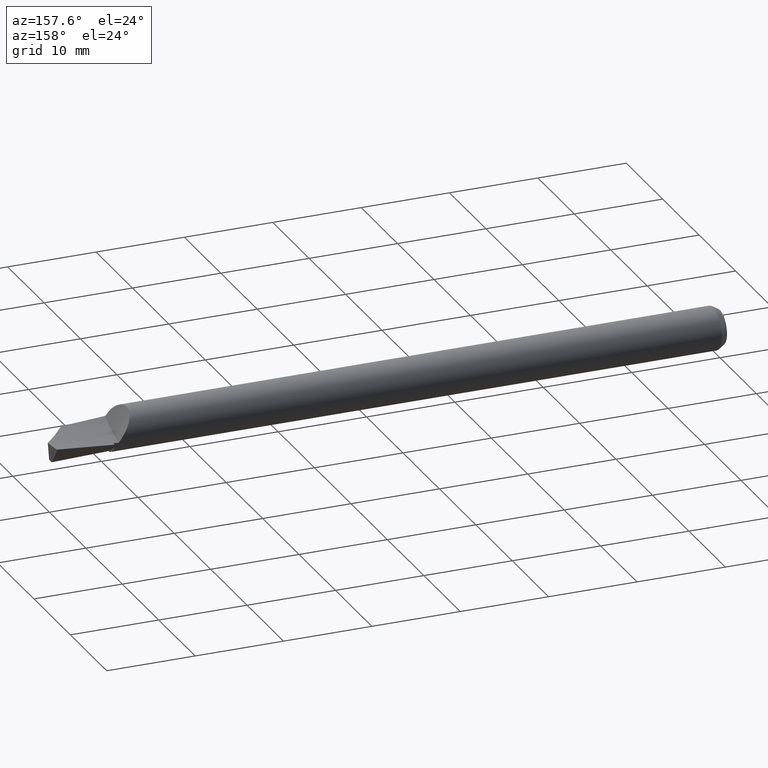
[diagram: clean part render]
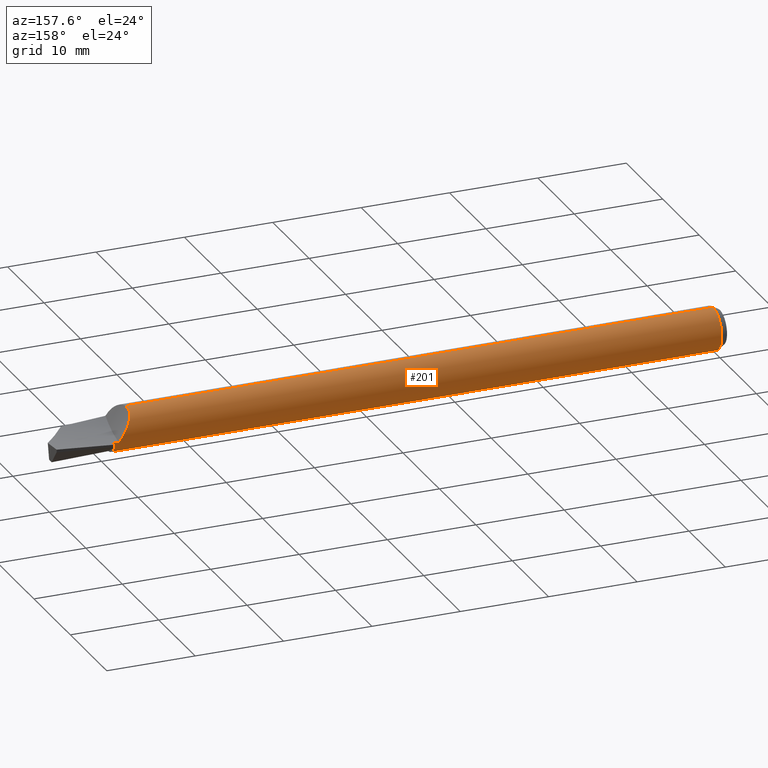
[diagram: same view with one face highlighted and labeled with its STEP entity id]
A machine part, auxiliary view. The second image highlights one B-rep face of the part: STEP entity #201.
In plain terms, the highlighted cylindrical surface (edge-blend (fillet) strip) has radius 2.3787 mm, axis along (-1, -0, -0).
Its self-contained STEP definition (entity closure, byte-faithful):
#1 = CYLINDRICAL_SURFACE ( 'NONE', #328, 0.09364999999999999714 ) ;
#2 = ORIENTED_EDGE ( 'NONE', *, *, #272, .F. ) ;
#7 = CARTESIAN_POINT ( 'NONE',  ( 2.648731579005755954, 0.04212291331834908115, 0.08385177601506443867 ) ) ;
#8 = CARTESIAN_POINT ( 'NONE',  ( 2.740000000000000213, 0.01010341027200485978, -0.09310340273521444665 ) ) ;
#23 = CARTESIAN_POINT ( 'NONE',  ( 2.729999274822195510, 0.08034742759774916865, -0.04811042881477657629 ) ) ;
#27 = CARTESIAN_POINT ( 'NONE',  ( 2.713645702931099191, 0.09128810367982466423, -0.02113646257700518838 ) ) ;
#32 = CARTESIAN_POINT ( 'NONE',  ( 2.657153545848679688, 0.06553243476681322455, 0.06690271648742038280 ) ) ;
#34 = CARTESIAN_POINT ( 'NONE',  ( 2.648823123821432368, 0.0002083311573135265935, 0.09365000102506688962 ) ) ;
#35 = DIRECTION ( 'NONE',  ( 0.000000000000000000, 0.000000000000000000, 1.000000000000000000 ) ) ;
#39 = CARTESIAN_POINT ( 'NONE',  ( 2.710961540492777377, 0.09224549721883372466, -0.01700594925194776064 ) ) ;
#40 = CARTESIAN_POINT ( 'NONE',  ( 2.729999274822195510, 0.08034742759774916865, -0.04811042881477657629 ) ) ;
#46 = VERTEX_POINT ( 'NONE', #652 ) ;
#47 = VECTOR ( 'NONE', #77, 39.37007874015748143 ) ;
#48 = CARTESIAN_POINT ( 'NONE',  ( 2.740000000000000213, 0.000000000000000000, 0.000000000000000000 ) ) ;
#54 = VERTEX_POINT ( 'NONE', #241 ) ;
#56 = VERTEX_POINT ( 'NONE', #669 ) ;
#62 = CARTESIAN_POINT ( 'NONE',  ( 2.648000000000000131, 0.000000000000000000, 0.000000000000000000 ) ) ;
#64 = ORIENTED_EDGE ( 'NONE', *, *, #244, .T. ) ;
#66 = ORIENTED_EDGE ( 'NONE', *, *, #75, .F. ) ;
#75 = EDGE_CURVE ( 'NONE', #543, #552, #459, .T. ) ;
#77 = DIRECTION ( 'NONE',  ( -1.000000000000000000, -0.000000000000000000, -0.000000000000000000 ) ) ;
#79 = CARTESIAN_POINT ( 'NONE',  ( 2.671780070111328342, 0.08324920488106214711, 0.04294035540791946159 ) ) ;
#83 = EDGE_CURVE ( 'NONE', #259, #269, #236, .T. ) ;
#85 = AXIS2_PLACEMENT_3D ( 'NONE', #243, #149, #666 ) ;
#86 = CARTESIAN_POINT ( 'NONE',  ( 2.694519981529421404, 0.09329194702683742124, 0.008192209811309534087 ) ) ;
#89 = CARTESIAN_POINT ( 'NONE',  ( 2.655662571347638501, 0.06272228013036625083, 0.06957321465527964433 ) ) ;
#91 = CARTESIAN_POINT ( 'NONE',  ( 2.704122698830285998, 0.09357548210034773162, -0.006485616146303971145 ) ) ;
#100 = ORIENTED_EDGE ( 'NONE', *, *, #83, .F. ) ;
#103 = EDGE_CURVE ( 'NONE', #46, #543, #574, .T. ) ;
#106 = CARTESIAN_POINT ( 'NONE',  ( 2.734997358170834225, 0.009725048957912103831, -0.09314446181012504822 ) ) ;
#115 = AXIS2_PLACEMENT_3D ( 'NONE', #500, #137, #616 ) ;
#137 = DIRECTION ( 'NONE',  ( 1.000000000000000000, 0.000000000000000000, 0.000000000000000000 ) ) ;
#141 = CARTESIAN_POINT ( 'NONE',  ( 2.739999999999999769, 0.08074344207419087427, -0.04744279778861887342 ) ) ;
#142 = CARTESIAN_POINT ( 'NONE',  ( 2.674651292824941962, 0.08538032817279563036, 0.03847803143859999248 ) ) ;
#146 = CARTESIAN_POINT ( 'NONE',  ( 2.734997358171129545, 0.08055064010576531985, -0.04777092967153879349 ) ) ;
#149 = DIRECTION ( 'NONE',  ( -1.000000000000000000, -0.000000000000000000, -0.000000000000000000 ) ) ;
#167 = CARTESIAN_POINT ( 'NONE',  ( 0.000000000000000000, 0.000000000000000000, 0.000000000000000000 ) ) ;
#169 = DIRECTION ( 'NONE',  ( -1.000000000000000000, -0.000000000000000000, -0.000000000000000000 ) ) ;
#171 = DIRECTION ( 'NONE',  ( 0.000000000000000000, 0.000000000000000000, 1.000000000000000000 ) ) ;
#173 = VERTEX_POINT ( 'NONE', #406 ) ;
#175 = EDGE_CURVE ( 'NONE', #173, #389, #366, .T. ) ;
#188 = CARTESIAN_POINT ( 'NONE',  ( 2.694772460887948196, 0.09332505324249035228, 0.007808570231833748300 ) ) ;
#192 = CARTESIAN_POINT ( 'NONE',  ( 2.659837862559129018, 0.07019894292448461415, 0.06219465053792666565 ) ) ;
#193 = CARTESIAN_POINT ( 'NONE',  ( 2.648774162755310968, 0.0005224480527187959182, 0.09364890627534445955 ) ) ;
#194 = CARTESIAN_POINT ( 'NONE',  ( 2.674087616056178174, 0.08498293252717993573, 0.03935073517130147774 ) ) ;
#197 = CARTESIAN_POINT ( 'NONE',  ( 2.666568753093929711, 0.07847585622821494356, 0.05118348085090287242 ) ) ;
#201 = ADVANCED_FACE ( 'NONE', ( #364 ), #1, .T. ) ;
#219 = DIRECTION ( 'NONE',  ( 0.000000000000000000, 0.000000000000000000, 1.000000000000000000 ) ) ;
#223 = ORIENTED_EDGE ( 'NONE', *, *, #378, .T. ) ;
#236 = CIRCLE ( 'NONE', #85, 0.09364999999999999714 ) ;
#241 = CARTESIAN_POINT ( 'NONE',  ( 2.715594912558478846, 0.09047690327886794004, -0.02417131508764841161 ) ) ;
#242 = CARTESIAN_POINT ( 'NONE',  ( 2.662293407963907566, 0.07366403736510236666, 0.05809885532553645676 ) ) ;
#243 = CARTESIAN_POINT ( 'NONE',  ( 0.03057069675359059061, 0.000000000000000000, 0.000000000000000000 ) ) ;
#244 = EDGE_CURVE ( 'NONE', #315, #552, #255, .T. ) ;
#245 = EDGE_CURVE ( 'NONE', #363, #46, #278, .T. ) ;
#255 = CIRCLE ( 'NONE', #280, 0.09364999999999999714 ) ;
#259 = VERTEX_POINT ( 'NONE', #310 ) ;
#262 = DIRECTION ( 'NONE',  ( 0.000000000000000000, 0.000000000000000000, 1.000000000000000000 ) ) ;
#263 = ORIENTED_EDGE ( 'NONE', *, *, #245, .F. ) ;
#265 = CARTESIAN_POINT ( 'NONE',  ( 0.03057069675359059061, 1.146881727401496266E-17, -0.09364999999999999714 ) ) ;
#267 = AXIS2_PLACEMENT_3D ( 'NONE', #506, #551, #35 ) ;
#269 = VERTEX_POINT ( 'NONE', #265 ) ;
#272 = EDGE_CURVE ( 'NONE', #315, #54, #631, .T. ) ;
#274 = B_SPLINE_CURVE_WITH_KNOTS ( 'NONE', 3,
 ( #478, #7, #644, #487, #594, #290, #89, #451, #32, #494, #393, #192, #242, #197, #665, #612, #79, #338, #194, #501, #142, #656, #336, #443, #602, #562, #396, #607, #347, #555, #292, #86, #188, #390, #91, #39, #27, #438 ),
 .UNSPECIFIED., .F., .F.,
 ( 4, 2, 2, 1, 1, 2, 2, 2, 2, 1, 1, 1, 2, 2, 2, 2, 2, 1, 2, 2, 2, 4 ),
 ( 0.000000000000000000, 0.1250000000000851264, 0.1875000000001276756, 0.2187500000001489087, 0.2343750000001613432, 0.2421875000001675327, 0.2500000000001737499, 0.3750000000002465805, 0.4375000000002854939, 0.4687500000003073652, 0.4843750000003158029, 0.4921875000003201328, 0.4960937500003198553, 0.5000000000003195222, 0.6250000000002586820, 0.6875000000002282619, 0.7187500000002104983, 0.7343750000002016165, 0.7421875000001971756, 0.7500000000001926237, 0.8750000000000962563, 1.000000000000000000 ),
 .UNSPECIFIED. ) ;
#278 =( BOUNDED_CURVE ( )  B_SPLINE_CURVE ( 2, ( #626, #106, #528 ),
 .UNSPECIFIED., .F., .T. ) 
 B_SPLINE_CURVE_WITH_KNOTS ( ( 3, 3 ),
 ( 0.3365654910811016753, 0.3494856403912289800 ),
 .UNSPECIFIED. ) 
 CURVE ( )  GEOMETRIC_REPRESENTATION_ITEM ( )  RATIONAL_B_SPLINE_CURVE ( ( 0.9945822379532471835, 0.9946923966803939976, 0.9948189969154069834 ) ) 
 REPRESENTATION_ITEM ( '' )  );
#280 = AXIS2_PLACEMENT_3D ( 'NONE', #48, #474, #262 ) ;
#284 = CARTESIAN_POINT ( 'NONE',  ( 0.000000000000000000, 0.000000000000000000, 0.09364999999999999714 ) ) ;
#290 = CARTESIAN_POINT ( 'NONE',  ( 2.654840748994309330, 0.06097772784957117276, 0.07109433443434577671 ) ) ;
#292 = CARTESIAN_POINT ( 'NONE',  ( 2.693968417897632417, 0.09321453594628095751, 0.009030502199227652751 ) ) ;
#300 = CARTESIAN_POINT ( 'NONE',  ( 2.648576821489902144, 0.001826048862968334416, 0.09363472875895693937 ) ) ;
#310 = CARTESIAN_POINT ( 'NONE',  ( 0.03057069675359059061, 0.000000000000000000, 0.09364999999999999714 ) ) ;
#311 = ORIENTED_EDGE ( 'NONE', *, *, #608, .T. ) ;
#315 = VERTEX_POINT ( 'NONE', #595 ) ;
#328 = AXIS2_PLACEMENT_3D ( 'NONE', #167, #415, #219 ) ;
#330 = CARTESIAN_POINT ( 'NONE',  ( 2.648000000000000131, 0.006204244709569405221, 0.09344426064549808675 ) ) ;
#334 = LINE ( 'NONE', #648, #47 ) ;
#336 = CARTESIAN_POINT ( 'NONE',  ( 2.677129380349655641, 0.08708831898437727204, 0.03464762275842025313 ) ) ;
#338 = CARTESIAN_POINT ( 'NONE',  ( 2.673307641915291466, 0.08441651375760907128, 0.04056095321443192042 ) ) ;
#341 = CARTESIAN_POINT ( 'NONE',  ( 2.648121537467483577, 0.005183671323936305669, 0.09351202468710621829 ) ) ;
#343 = ORIENTED_EDGE ( 'NONE', *, *, #411, .F. ) ;
#345 = CARTESIAN_POINT ( 'NONE',  ( 2.739999999999999769, 0.08074344207419087427, -0.04744279778861887342 ) ) ;
#347 = CARTESIAN_POINT ( 'NONE',  ( 2.692346411141291807, 0.09294507949201641361, 0.01149717748004344155 ) ) ;
#349 = EDGE_LOOP ( 'NONE', ( #311, #223, #100, #343, #630, #587, #469, #2, #64, #66, #529, #263 ) ) ;
#363 = VERTEX_POINT ( 'NONE', #8 ) ;
#364 = FACE_OUTER_BOUND ( 'NONE', #349, .T. ) ;
#366 = B_SPLINE_CURVE_WITH_KNOTS ( 'NONE', 3,
 ( #452, #34, #193, #614, #300, #621, #341, #397 ),
 .UNSPECIFIED., .F., .F.,
 ( 4, 2, 1, 1, 4 ),
 ( 0.9570273027410872713, 0.9623988898984521256, 0.9677704770558170910, 0.9785136513705452455, 1.000000000000000000 ),
 .UNSPECIFIED. ) ;
#378 = EDGE_CURVE ( 'NONE', #56, #269, #334, .T. ) ;
#389 = VERTEX_POINT ( 'NONE', #330 ) ;
#390 = CARTESIAN_POINT ( 'NONE',  ( 2.699968019606114211, 0.09394585953794208633, -8.313324166261506815E-05 ) ) ;
#393 = CARTESIAN_POINT ( 'NONE',  ( 2.657648198041072884, 0.06641091190292104651, 0.06603040088723458045 ) ) ;
#396 = CARTESIAN_POINT ( 'NONE',  ( 2.689754192620080087, 0.09238053786347370788, 0.01544230418370997650 ) ) ;
#397 = CARTESIAN_POINT ( 'NONE',  ( 2.648000000000000131, 0.006204244709569405221, 0.09344426064549808675 ) ) ;
#406 = CARTESIAN_POINT ( 'NONE',  ( 2.648853733171861347, -8.222118150690407239E-07, 0.09365456280322455307 ) ) ;
#409 = CARTESIAN_POINT ( 'NONE',  ( 2.715594912558478846, 0.09047690327886794004, -0.02417131508764841161 ) ) ;
#411 = EDGE_CURVE ( 'NONE', #173, #259, #641, .T. ) ;
#415 = DIRECTION ( 'NONE',  ( -1.000000000000000000, -0.000000000000000000, -0.000000000000000000 ) ) ;
#430 = VECTOR ( 'NONE', #169, 39.37007874015748143 ) ;
#438 = CARTESIAN_POINT ( 'NONE',  ( 2.715594912558478846, 0.09047690327886794004, -0.02417131508764841161 ) ) ;
#443 = CARTESIAN_POINT ( 'NONE',  ( 2.679938187649038017, 0.08874494981241611014, 0.03038010713828511941 ) ) ;
#447 = EDGE_CURVE ( 'NONE', #389, #623, #453, .T. ) ;
#451 = CARTESIAN_POINT ( 'NONE',  ( 2.656695180967256764, 0.06469860383815342897, 0.06771607911251709133 ) ) ;
#452 = CARTESIAN_POINT ( 'NONE',  ( 2.648853733171861347, -8.222118150690407239E-07, 0.09365456280322455307 ) ) ;
#453 = CIRCLE ( 'NONE', #520, 0.09364999999999999714 ) ;
#459 =( BOUNDED_CURVE ( )  B_SPLINE_CURVE ( 2, ( #40, #146, #141 ),
 .UNSPECIFIED., .F., .T. ) 
 B_SPLINE_CURVE_WITH_KNOTS ( ( 3, 3 ),
 ( 0.6505143596091145231, 0.6634345089193156575 ),
 .UNSPECIFIED. ) 
 CURVE ( )  GEOMETRIC_REPRESENTATION_ITEM ( )  RATIONAL_B_SPLINE_CURVE ( ( 0.9948189969154004331, 0.9946923966803871142, 0.9945822379532401891 ) ) 
 REPRESENTATION_ITEM ( '' )  );
#468 = CARTESIAN_POINT ( 'NONE',  ( 2.740000000000000213, 0.09093235533035093354, -0.02239708137674525229 ) ) ;
#469 = ORIENTED_EDGE ( 'NONE', *, *, #540, .T. ) ;
#474 = DIRECTION ( 'NONE',  ( -1.000000000000000000, -0.000000000000000000, -0.000000000000000000 ) ) ;
#478 = CARTESIAN_POINT ( 'NONE',  ( 2.648000000000000131, 0.03666875582908381281, 0.08617264557820557280 ) ) ;
#487 = CARTESIAN_POINT ( 'NONE',  ( 2.652354427575247087, 0.05497717952771474098, 0.07587532363428059479 ) ) ;
#494 = CARTESIAN_POINT ( 'NONE',  ( 2.657462637525534355, 0.06608533833252466794, 0.06635662391456131903 ) ) ;
#500 = CARTESIAN_POINT ( 'NONE',  ( 2.729999999999999982, 0.000000000000000000, 0.000000000000000000 ) ) ;
#501 = CARTESIAN_POINT ( 'NONE',  ( 2.674425359596325436, 0.08522188367699656819, 0.03882769481734188455 ) ) ;
#506 = CARTESIAN_POINT ( 'NONE',  ( 2.740000000000000213, 0.000000000000000000, 0.000000000000000000 ) ) ;
#520 = AXIS2_PLACEMENT_3D ( 'NONE', #62, #633, #171 ) ;
#528 = CARTESIAN_POINT ( 'NONE',  ( 2.729997824466591450, 0.009341362972296943235, -0.09318294592930337350 ) ) ;
#529 = ORIENTED_EDGE ( 'NONE', *, *, #103, .F. ) ;
#540 = EDGE_CURVE ( 'NONE', #623, #54, #274, .T. ) ;
#543 = VERTEX_POINT ( 'NONE', #23 ) ;
#548 = CARTESIAN_POINT ( 'NONE',  ( 2.648000000000000131, 0.03666875582908381281, 0.08617264557820557280 ) ) ;
#551 = DIRECTION ( 'NONE',  ( -1.000000000000000000, -0.000000000000000000, -0.000000000000000000 ) ) ;
#552 = VERTEX_POINT ( 'NONE', #345 ) ;
#555 = CARTESIAN_POINT ( 'NONE',  ( 2.693147609277753318, 0.09309075473232297782, 0.01027834848644253174 ) ) ;
#562 = CARTESIAN_POINT ( 'NONE',  ( 2.686810873186447068, 0.09155667894686830843, 0.01992288076578763861 ) ) ;
#564 = CIRCLE ( 'NONE', #267, 0.09364999999999999714 ) ;
#574 = CIRCLE ( 'NONE', #115, 0.09364999999999999714 ) ;
#587 = ORIENTED_EDGE ( 'NONE', *, *, #447, .T. ) ;
#594 = CARTESIAN_POINT ( 'NONE',  ( 2.653281466429438851, 0.05742683072763662966, 0.07404014007290404820 ) ) ;
#595 = CARTESIAN_POINT ( 'NONE',  ( 2.740000000000000213, 0.09093235533035093354, -0.02239708137674525229 ) ) ;
#602 = CARTESIAN_POINT ( 'NONE',  ( 2.684988112557207263, 0.09089690410810076504, 0.02269689307588629648 ) ) ;
#607 = CARTESIAN_POINT ( 'NONE',  ( 2.690770162179587643, 0.09262740064500456227, 0.01389563661331439694 ) ) ;
#608 = EDGE_CURVE ( 'NONE', #363, #56, #564, .T. ) ;
#612 = CARTESIAN_POINT ( 'NONE',  ( 2.670526225384182606, 0.08219295186751633675, 0.04490888344149492062 ) ) ;
#614 = CARTESIAN_POINT ( 'NONE',  ( 2.648694361362348815, 0.001044343715852661314, 0.09364454038938516134 ) ) ;
#616 = DIRECTION ( 'NONE',  ( 0.000000000000000000, 0.000000000000000000, -1.000000000000000000 ) ) ;
#621 = CARTESIAN_POINT ( 'NONE',  ( 2.648317697306481477, 0.003641870858031078656, 0.09358919242731106314 ) ) ;
#623 = VERTEX_POINT ( 'NONE', #548 ) ;
#626 = CARTESIAN_POINT ( 'NONE',  ( 2.740000000000000213, 0.01010341027200485978, -0.09310340273521444665 ) ) ;
#630 = ORIENTED_EDGE ( 'NONE', *, *, #175, .T. ) ;
#631 =( BOUNDED_CURVE ( )  B_SPLINE_CURVE ( 2, ( #468, #680, #409 ),
 .UNSPECIFIED., .F., .T. ) 
 B_SPLINE_CURVE_WITH_KNOTS ( ( 3, 3 ),
 ( 0.3319336809084335593, 0.3630297608688277111 ),
 .UNSPECIFIED. ) 
 CURVE ( )  GEOMETRIC_REPRESENTATION_ITEM ( )  RATIONAL_B_SPLINE_CURVE ( ( 0.9774999438821363462, 0.9777465956879387576, 0.9780868586215529792 ) ) 
 REPRESENTATION_ITEM ( '' )  );
#633 = DIRECTION ( 'NONE',  ( -1.000000000000000000, 0.000000000000000000, 0.000000000000000000 ) ) ;
#641 = LINE ( 'NONE', #284, #430 ) ;
#644 = CARTESIAN_POINT ( 'NONE',  ( 2.649910759579823694, 0.04742610885864532999, 0.08098158259904204848 ) ) ;
#648 = CARTESIAN_POINT ( 'NONE',  ( 0.000000000000000000, 1.146881727401496266E-17, -0.09364999999999999714 ) ) ;
#652 = CARTESIAN_POINT ( 'NONE',  ( 2.729997824466591450, 0.009341362972296943235, -0.09318294592930337350 ) ) ;
#656 = CARTESIAN_POINT ( 'NONE',  ( 2.674808038669046262, 0.08548901866737304567, 0.03823564250492574729 ) ) ;
#665 = CARTESIAN_POINT ( 'NONE',  ( 2.668092539307745259, 0.08001499355301562588, 0.04875028103858875667 ) ) ;
#666 = DIRECTION ( 'NONE',  ( 0.000000000000000000, 0.000000000000000000, 1.000000000000000000 ) ) ;
#669 = CARTESIAN_POINT ( 'NONE',  ( 2.740000000000000657, 0.000000000000000000, -0.09364999999999999714 ) ) ;
#680 = CARTESIAN_POINT ( 'NONE',  ( 2.727790124694640550, 0.09071330555731091372, -0.02328642545694240701 ) ) ;